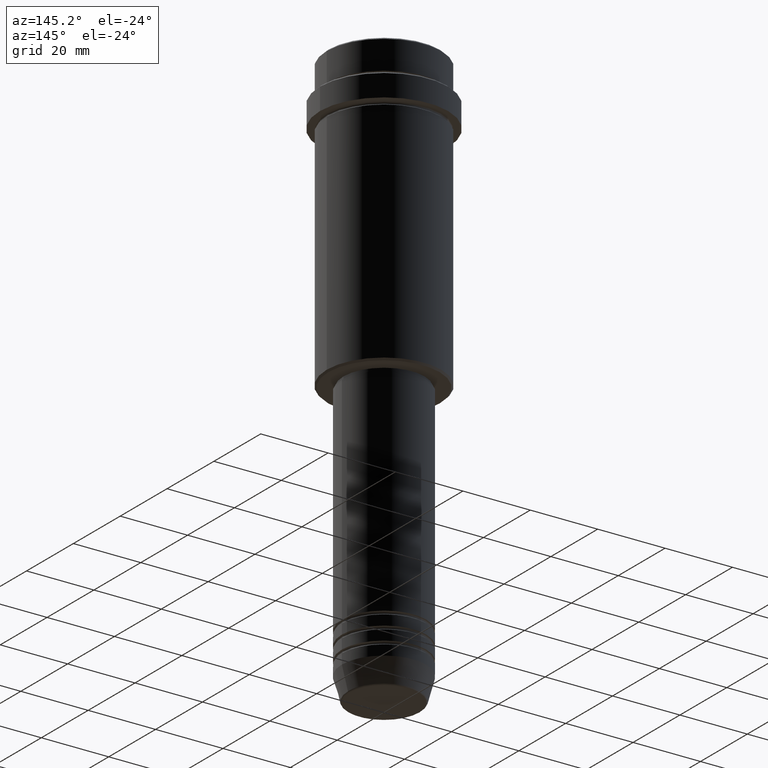
[diagram: clean part render]
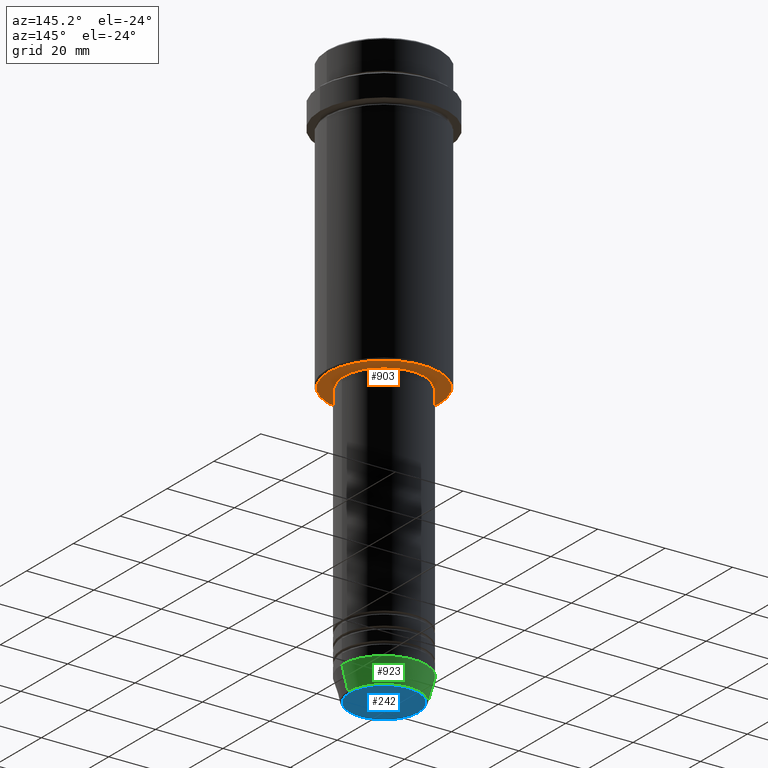
[diagram: same view with three faces highlighted in distinct colors, each labeled with its STEP entity id]
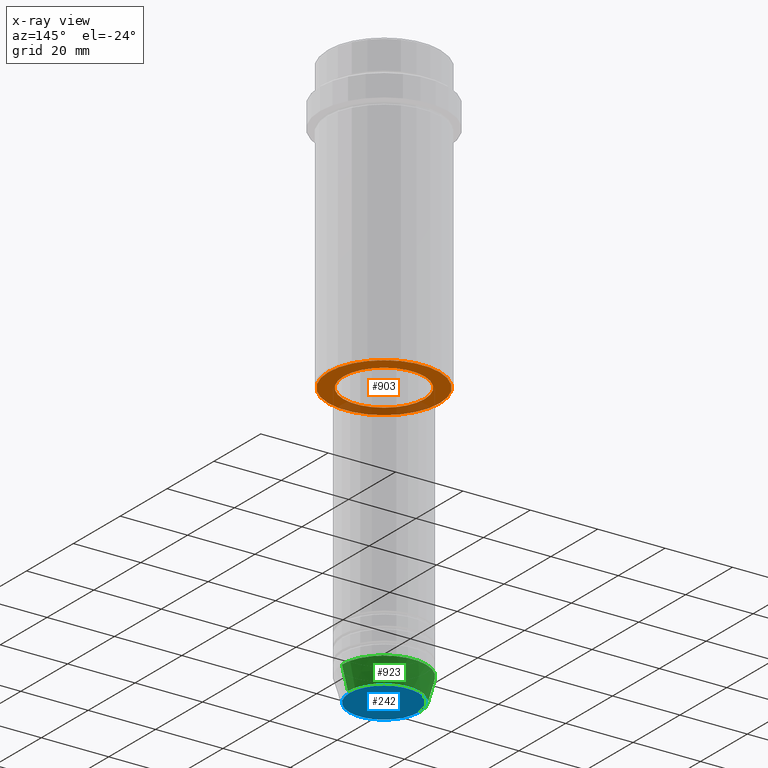
[diagram: x-ray of the same camera — body ghosted, the three highlighted faces saturated]
A machine part, auxiliary view with three faces highlighted in distinct colors.
The next image is the same camera in x-ray (body ghosted, the three faces saturated) — at least one of them is partly hidden behind the body in this view.
Their STEP definitions:

[orange] entity #903 — the highlighted planar face has unit normal (0, 0, -1).
#4 = EDGE_LOOP ( 'NONE', ( #142, #23 ) ) ;
#23 = ORIENTED_EDGE ( 'NONE', *, *, #919, .T. ) ;
#77 = AXIS2_PLACEMENT_3D ( 'NONE', #955, #850, #1184 ) ;
#114 = EDGE_CURVE ( 'NONE', #1170, #991, #271, .T. ) ;
#128 = CARTESIAN_POINT ( 'NONE',  ( 11.99999999999999289, 0.000000000000000000, -85.99999999999998579 ) ) ;
#142 = ORIENTED_EDGE ( 'NONE', *, *, #1387, .T. ) ;
#182 = CIRCLE ( 'NONE', #309, 11.99999999999999289 ) ;
#217 = DIRECTION ( 'NONE',  ( 0.000000000000000000, 0.000000000000000000, -1.000000000000000000 ) ) ;
#271 = CIRCLE ( 'NONE', #625, 16.50000000000001421 ) ;
#303 = CARTESIAN_POINT ( 'NONE',  ( 0.000000000000000000, 0.000000000000000000, -85.99999999999998579 ) ) ;
#309 = AXIS2_PLACEMENT_3D ( 'NONE', #303, #968, #527 ) ;
#327 = CARTESIAN_POINT ( 'NONE',  ( 0.000000000000000000, 0.000000000000000000, -85.99999999999998579 ) ) ;
#338 = CARTESIAN_POINT ( 'NONE',  ( -11.99999999999999289, 1.469576158976823158E-15, -85.99999999999998579 ) ) ;
#398 = PLANE ( 'NONE',  #77 ) ;
#422 = CARTESIAN_POINT ( 'NONE',  ( -16.50000000000001421, 2.051283388571816887E-15, -85.99999999999998579 ) ) ;
#424 = AXIS2_PLACEMENT_3D ( 'NONE', #1203, #217, #860 ) ;
#527 = DIRECTION ( 'NONE',  ( 1.000000000000000000, 0.000000000000000000, 0.000000000000000000 ) ) ;
#625 = AXIS2_PLACEMENT_3D ( 'NONE', #327, #1328, #664 ) ;
#634 = FACE_BOUND ( 'NONE', #4, .T. ) ;
#639 = VERTEX_POINT ( 'NONE', #128 ) ;
#664 = DIRECTION ( 'NONE',  ( -1.000000000000000000, 0.000000000000000000, 0.000000000000000000 ) ) ;
#812 = ORIENTED_EDGE ( 'NONE', *, *, #996, .T. ) ;
#821 = CARTESIAN_POINT ( 'NONE',  ( 0.000000000000000000, 0.000000000000000000, -85.99999999999998579 ) ) ;
#850 = DIRECTION ( 'NONE',  ( 0.000000000000000000, 0.000000000000000000, -1.000000000000000000 ) ) ;
#860 = DIRECTION ( 'NONE',  ( -1.000000000000000000, 0.000000000000000000, 0.000000000000000000 ) ) ;
#903 = ADVANCED_FACE ( 'NONE', ( #963, #634 ), #398, .T. ) ;
#919 = EDGE_CURVE ( 'NONE', #1143, #639, #1181, .T. ) ;
#955 = CARTESIAN_POINT ( 'NONE',  ( 0.000000000000000000, 17.00000000000000000, -85.99999999999998579 ) ) ;
#957 = ORIENTED_EDGE ( 'NONE', *, *, #114, .T. ) ;
#963 = FACE_OUTER_BOUND ( 'NONE', #1013, .T. ) ;
#968 = DIRECTION ( 'NONE',  ( -0.000000000000000000, -0.000000000000000000, 1.000000000000000000 ) ) ;
#991 = VERTEX_POINT ( 'NONE', #422 ) ;
#996 = EDGE_CURVE ( 'NONE', #991, #1170, #1378, .T. ) ;
#1013 = EDGE_LOOP ( 'NONE', ( #957, #812 ) ) ;
#1030 = CARTESIAN_POINT ( 'NONE',  ( 16.50000000000001421, 0.000000000000000000, -85.99999999999998579 ) ) ;
#1038 = DIRECTION ( 'NONE',  ( 1.000000000000000000, 0.000000000000000000, 0.000000000000000000 ) ) ;
#1143 = VERTEX_POINT ( 'NONE', #338 ) ;
#1170 = VERTEX_POINT ( 'NONE', #1030 ) ;
#1181 = CIRCLE ( 'NONE', #1358, 11.99999999999999289 ) ;
#1184 = DIRECTION ( 'NONE',  ( -1.000000000000000000, 0.000000000000000000, -0.000000000000000000 ) ) ;
#1203 = CARTESIAN_POINT ( 'NONE',  ( 0.000000000000000000, 0.000000000000000000, -85.99999999999998579 ) ) ;
#1312 = DIRECTION ( 'NONE',  ( -0.000000000000000000, -0.000000000000000000, 1.000000000000000000 ) ) ;
#1328 = DIRECTION ( 'NONE',  ( 0.000000000000000000, 0.000000000000000000, -1.000000000000000000 ) ) ;
#1358 = AXIS2_PLACEMENT_3D ( 'NONE', #821, #1312, #1038 ) ;
#1378 = CIRCLE ( 'NONE', #424, 16.50000000000001421 ) ;
#1387 = EDGE_CURVE ( 'NONE', #639, #1143, #182, .T. ) ;

[blue] entity #242 — the highlighted planar face has unit normal (0, -0, 1).
#14 = EDGE_CURVE ( 'NONE', #474, #1166, #477, .T. ) ;
#56 = CARTESIAN_POINT ( 'NONE',  ( 0.000000000000000000, 0.000000000000000000, -170.0000000000000000 ) ) ;
#166 = AXIS2_PLACEMENT_3D ( 'NONE', #1218, #772, #203 ) ;
#184 = EDGE_LOOP ( 'NONE', ( #216, #555 ) ) ;
#193 = EDGE_CURVE ( 'NONE', #1166, #474, #402, .T. ) ;
#199 = AXIS2_PLACEMENT_3D ( 'NONE', #56, #692, #572 ) ;
#203 = DIRECTION ( 'NONE',  ( 1.000000000000000000, 0.000000000000000000, 0.000000000000000000 ) ) ;
#216 = ORIENTED_EDGE ( 'NONE', *, *, #193, .T. ) ;
#242 = ADVANCED_FACE ( 'NONE', ( #1367 ), #1260, .F. ) ;
#264 = CARTESIAN_POINT ( 'NONE',  ( 0.000000000000000000, 0.000000000000000000, -170.0000000000000000 ) ) ;
#402 = CIRCLE ( 'NONE', #199, 10.24069215899265828 ) ;
#474 = VERTEX_POINT ( 'NONE', #525 ) ;
#477 = CIRCLE ( 'NONE', #166, 10.24069215899265828 ) ;
#478 = CARTESIAN_POINT ( 'NONE',  ( 10.24069215899265828, 0.000000000000000000, -170.0000000000000000 ) ) ;
#525 = CARTESIAN_POINT ( 'NONE',  ( -10.24069215899265828, 1.283696036640842178E-15, -170.0000000000000000 ) ) ;
#555 = ORIENTED_EDGE ( 'NONE', *, *, #14, .T. ) ;
#572 = DIRECTION ( 'NONE',  ( 1.000000000000000000, 0.000000000000000000, 0.000000000000000000 ) ) ;
#590 = DIRECTION ( 'NONE',  ( 1.000000000000000000, 0.000000000000000000, 0.000000000000000000 ) ) ;
#692 = DIRECTION ( 'NONE',  ( 0.000000000000000000, 0.000000000000000000, -1.000000000000000000 ) ) ;
#702 = DIRECTION ( 'NONE',  ( 0.000000000000000000, -0.000000000000000000, 1.000000000000000000 ) ) ;
#772 = DIRECTION ( 'NONE',  ( 0.000000000000000000, 0.000000000000000000, -1.000000000000000000 ) ) ;
#1166 = VERTEX_POINT ( 'NONE', #478 ) ;
#1218 = CARTESIAN_POINT ( 'NONE',  ( 0.000000000000000000, 0.000000000000000000, -170.0000000000000000 ) ) ;
#1248 = AXIS2_PLACEMENT_3D ( 'NONE', #264, #702, #590 ) ;
#1260 = PLANE ( 'NONE',  #1248 ) ;
#1367 = FACE_OUTER_BOUND ( 'NONE', #184, .T. ) ;

[green] entity #923 — the highlighted conical surface has half-angle 15 deg.
#103 = DIRECTION ( 'NONE',  ( 1.000000000000000000, 0.000000000000000000, 0.000000000000000000 ) ) ;
#225 = VECTOR ( 'NONE', #826, 1000.000000000000000 ) ;
#261 = DIRECTION ( 'NONE',  ( 0.2588190451025213501, 0.000000000000000000, 0.9659258262890680902 ) ) ;
#273 = CIRCLE ( 'NONE', #1067, 10.72365507213718416 ) ;
#344 = VERTEX_POINT ( 'NONE', #459 ) ;
#348 = DIRECTION ( 'NONE',  ( -0.000000000000000000, -0.000000000000000000, 1.000000000000000000 ) ) ;
#383 = AXIS2_PLACEMENT_3D ( 'NONE', #487, #348, #1335 ) ;
#458 = VERTEX_POINT ( 'NONE', #1282 ) ;
#459 = CARTESIAN_POINT ( 'NONE',  ( -10.72365507213718416, 1.422038742429750121E-15, -169.6294095225512990 ) ) ;
#487 = CARTESIAN_POINT ( 'NONE',  ( 0.000000000000000000, 0.000000000000000000, -163.0000000000000000 ) ) ;
#495 = FACE_OUTER_BOUND ( 'NONE', #1394, .T. ) ;
#599 = CARTESIAN_POINT ( 'NONE',  ( 12.50000000000000000, 0.000000000000000000, -163.0000000000000000 ) ) ;
#601 = CARTESIAN_POINT ( 'NONE',  ( -12.50000000000000000, 1.530808498934191521E-15, -163.0000000000000000 ) ) ;
#608 = AXIS2_PLACEMENT_3D ( 'NONE', #934, #1277, #1189 ) ;
#621 = CARTESIAN_POINT ( 'NONE',  ( 0.000000000000000000, 0.000000000000000000, -169.6294095225512990 ) ) ;
#676 = ORIENTED_EDGE ( 'NONE', *, *, #1390, .T. ) ;
#737 = CARTESIAN_POINT ( 'NONE',  ( -12.50000000000000000, 1.530808498934191521E-15, -163.0000000000000000 ) ) ;
#749 = VERTEX_POINT ( 'NONE', #912 ) ;
#770 = EDGE_CURVE ( 'NONE', #458, #749, #796, .T. ) ;
#796 = LINE ( 'NONE', #599, #940 ) ;
#826 = DIRECTION ( 'NONE',  ( -0.2588190451025213501, 3.169619151431772337E-17, 0.9659258262890680902 ) ) ;
#882 = ORIENTED_EDGE ( 'NONE', *, *, #1159, .F. ) ;
#912 = CARTESIAN_POINT ( 'NONE',  ( 12.50000000000000000, 0.000000000000000000, -163.0000000000000000 ) ) ;
#913 = CIRCLE ( 'NONE', #383, 12.50000000000000000 ) ;
#923 = ADVANCED_FACE ( 'NONE', ( #495 ), #1044, .T. ) ;
#934 = CARTESIAN_POINT ( 'NONE',  ( 0.000000000000000000, 0.000000000000000000, -163.0000000000000000 ) ) ;
#940 = VECTOR ( 'NONE', #261, 1000.000000000000000 ) ;
#973 = VERTEX_POINT ( 'NONE', #737 ) ;
#1044 = CONICAL_SURFACE ( 'NONE', #608, 12.50000000000000000, 0.2617993877991500740 ) ;
#1054 = LINE ( 'NONE', #601, #225 ) ;
#1066 = DIRECTION ( 'NONE',  ( -0.000000000000000000, -0.000000000000000000, 1.000000000000000000 ) ) ;
#1067 = AXIS2_PLACEMENT_3D ( 'NONE', #621, #1066, #103 ) ;
#1116 = ORIENTED_EDGE ( 'NONE', *, *, #770, .F. ) ;
#1156 = ORIENTED_EDGE ( 'NONE', *, *, #1259, .T. ) ;
#1159 = EDGE_CURVE ( 'NONE', #749, #973, #913, .T. ) ;
#1189 = DIRECTION ( 'NONE',  ( 1.000000000000000000, 0.000000000000000000, 0.000000000000000000 ) ) ;
#1259 = EDGE_CURVE ( 'NONE', #344, #973, #1054, .T. ) ;
#1277 = DIRECTION ( 'NONE',  ( -0.000000000000000000, -0.000000000000000000, 1.000000000000000000 ) ) ;
#1282 = CARTESIAN_POINT ( 'NONE',  ( 10.72365507213718416, 0.000000000000000000, -169.6294095225512990 ) ) ;
#1335 = DIRECTION ( 'NONE',  ( 1.000000000000000000, 0.000000000000000000, 0.000000000000000000 ) ) ;
#1390 = EDGE_CURVE ( 'NONE', #458, #344, #273, .T. ) ;
#1394 = EDGE_LOOP ( 'NONE', ( #676, #1156, #882, #1116 ) ) ;